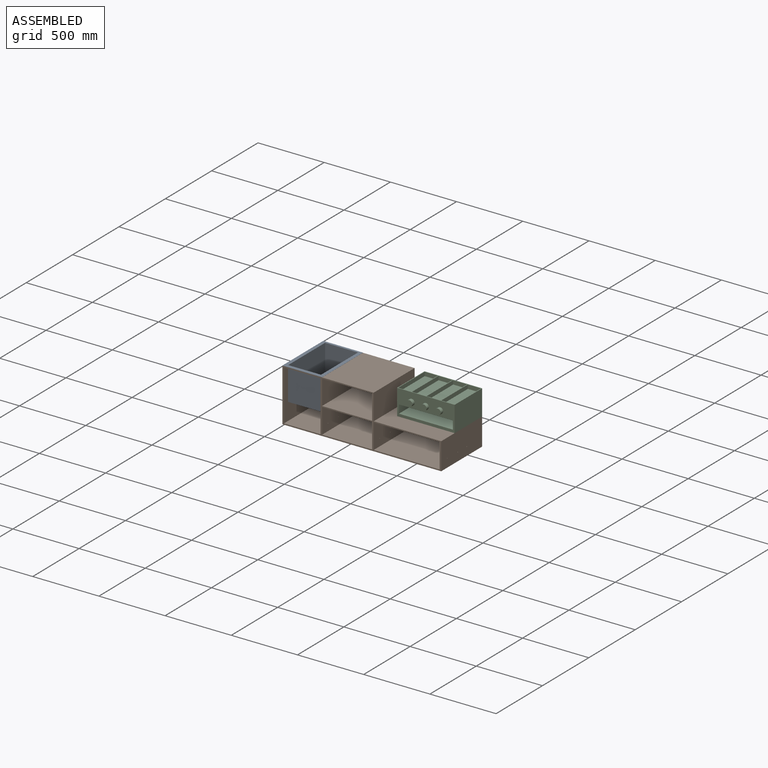
[diagram: assembled view]
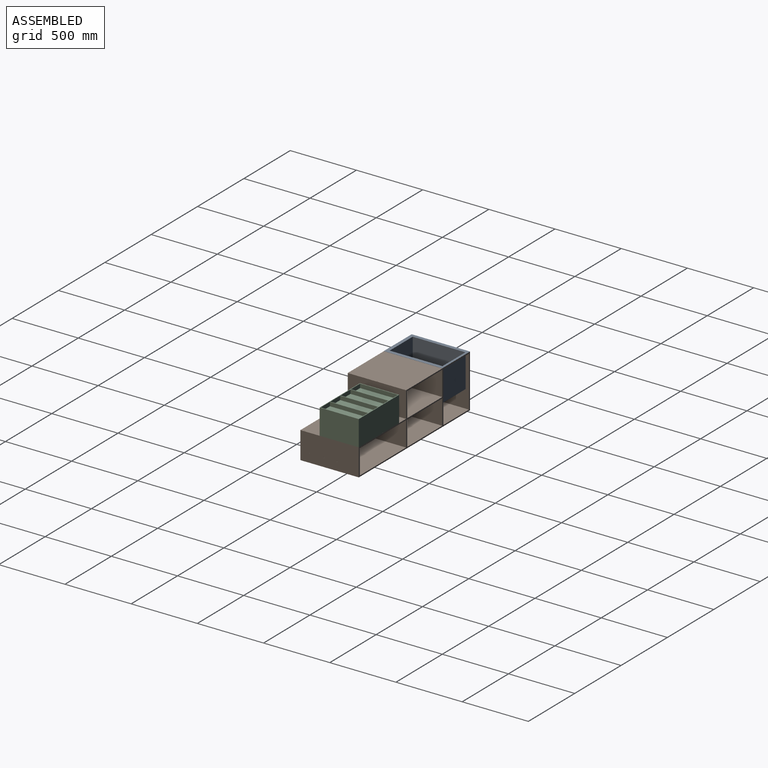
[diagram: assembled view, second angle]
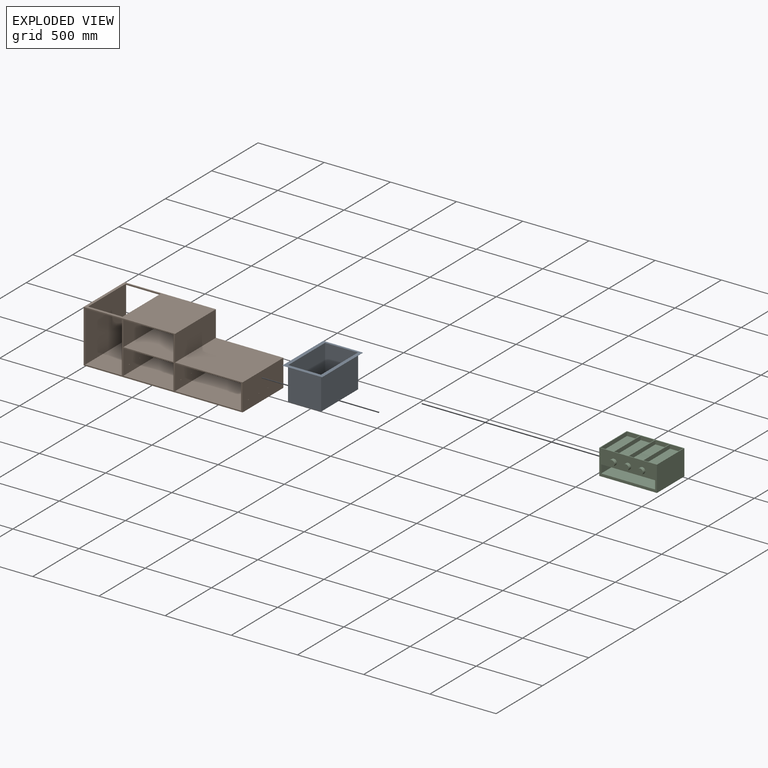
[diagram: exploded view]
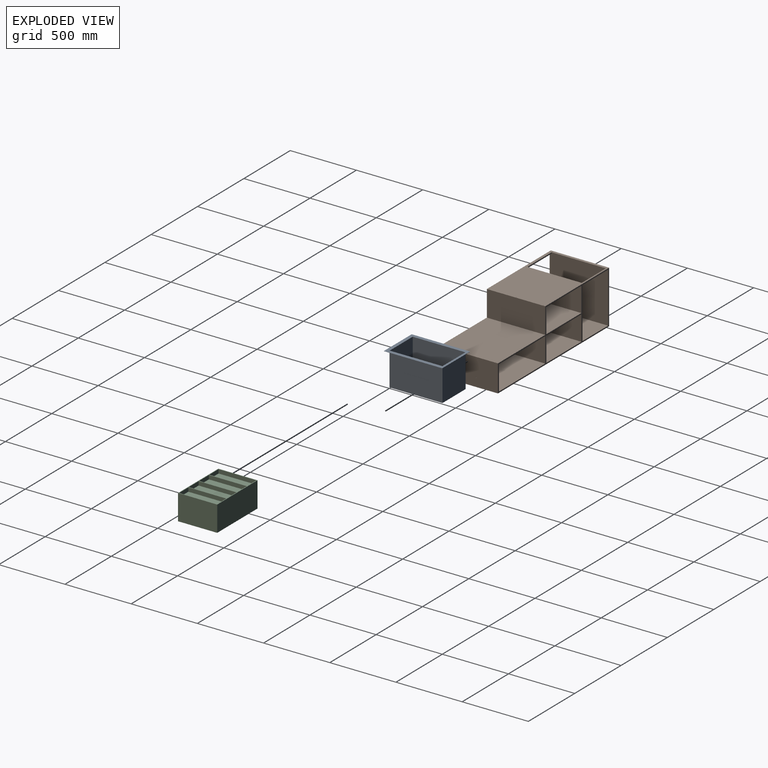
[diagram: exploded view, second angle]
ASSEMBLY  parts=3 mates=2
PART A: 16 faces, bbox 300x441x251 mm
  f0: plane 300x1mm, normal (0,-1,0), area 300mm2, adj f1,f3,f4,f5
  f1: plane 441x1mm, normal (1,0,0), area 441mm2, adj f0,f2,f4,f5
  f2: plane 300x1mm, normal (0,1,0), area 300mm2, adj f1,f3,f4,f5
  f3: plane 441x1mm, normal (-1,0,0), area 441mm2, adj f0,f2,f4,f5
  f4: plane 441x300mm, normal (0,0,1), area 33596mm2, adj f0,f1,f2,f3,f11,f12,f13,f14
  f5: plane 441x300mm, normal (0,0,-1), area 32300mm2, adj f0,f1,f2,f3,f6,f7,f8,f9
  f6: plane 250x250mm, normal (0,-1,0), area 62500mm2, adj f5,f7,f9,f10
  f7: plane 400x250mm, normal (1,0,0), area 100000mm2, adj f5,f6,f8,f10
  f8: plane 250x250mm, normal (0,1,0), area 62500mm2, adj f5,f7,f9,f10
  f9: plane 400x250mm, normal (-1,0,0), area 100000mm2, adj f5,f6,f8,f10
  f10: plane 400x250mm, normal (0,0,-1), area 100000mm2, adj f6,f7,f8,f9
  f11: plane 250x248mm, normal (0,1,0), area 62000mm2, adj f4,f12,f14,f15
  f12: plane 398x250mm, normal (-1,0,0), area 99500mm2, adj f4,f11,f13,f15
  f13: plane 250x248mm, normal (0,-1,0), area 62000mm2, adj f4,f12,f14,f15
  f14: plane 398x250mm, normal (1,0,0), area 99500mm2, adj f4,f11,f13,f15
  f15: plane 398x248mm, normal (0,0,1), area 98704mm2, adj f11,f12,f13,f14
PART B: 100 faces, bbox 1200x441x400 mm
  f0: plane 498x441mm, normal (0,0,1), area 219618mm2, adj f1,f8,f9,f23
  f1: plane 441x187mm, normal (1,0,0), area 82410.4mm2, adj f0,f8,f9,f17,f34,f35,f36,f40
  f2: plane 441x186mm, normal (-1,0,0), area 82026mm2, adj f5,f8,f9,f15
  f3: plane 441x187mm, normal (1,0,0), area 82410.4mm2, adj f8,f9,f16,f21,f31,f32,f33,f37
  f4: plane 441x276mm, normal (0,0,-1), area 15116mm2, adj f7,f8,f9,f13,f24,f25,f26,f27
  f5: plane 441x378mm, normal (0,0,-1), area 166698mm2, adj f2,f8,f9,f14
  f6: plane 441x400mm, normal (-1,0,0), area 176400mm2, adj f8,f9,f11,f22
  f7: plane 441x382mm, normal (1,0,0), area 168462mm2, adj f4,f8,f9,f20
  f8: plane 1200x400mm, normal (0,-1,0), area 40998mm2, adj f0,f1,f2,f3,f4,f5,f6,f7
  f9: plane 1200x400mm, normal (0,1,0), area 40998mm2, adj f0,f1,f2,f3,f4,f5,f6,f7
  f10: plane 441x195mm, normal (1,0,0), area 85995mm2, adj f8,f9,f11,f19
  f11: plane 690x441mm, normal (0,0,1), area 197661.7mm2, adj f6,f8,f9,f10,f24,f25,f26,f27
  f12: plane 441x187mm, normal (-1,0,0), area 82410.4mm2, adj f8,f9,f16,f21,f34,f35,f36,f40
  f13: plane 441x382mm, normal (-1,0,0), area 168405.4mm2, adj f4,f8,f9,f20,f31,f32,f33,f37
  f14: plane 441x186mm, normal (1,0,0), area 82026mm2, adj f5,f8,f9,f15
  f15: plane 441x378mm, normal (0,0,1), area 166698mm2, adj f2,f8,f9,f14
  f16: plane 441x378mm, normal (0,0,-1), area 166698mm2, adj f3,f8,f9,f12
  f17: plane 498x441mm, normal (0,0,-1), area 219618mm2, adj f1,f8,f9,f23
  f18: plane 441x205mm, normal (1,0,0), area 90350.7mm2, adj f8,f9,f19,f22,f28,f29,f30
  f19: plane 510x441mm, normal (0,0,1), area 224900.6mm2, adj f8,f9,f10,f18,f62,f64,f66
  f20: plane 441x276mm, normal (0,0,1), area 121716mm2, adj f7,f8,f9,f13
  f21: plane 441x378mm, normal (0,0,1), area 166698mm2, adj f3,f8,f9,f12
  f22: plane 1200x441mm, normal (0,0,-1), area 529162.3mm2, adj f6,f8,f9,f18,f68,f70,f72,f74
  f23: plane 441x187mm, normal (-1,0,0), area 82412.7mm2, adj f0,f8,f9,f17,f28,f29,f30
  f24: plane 410x9mm, normal (-1,0,0), area 3690mm2, adj f4,f11,f25,f26
  f25: plane 260x9mm, normal (0,1,0), area 2340mm2, adj f4,f11,f24,f27
  f26: plane 260x9mm, normal (0,-1,0), area 2340mm2, adj f4,f11,f24,f27
  f27: plane 410x9mm, normal (1,0,0), area 3690mm2, adj f4,f11,f25,f26
  f28: cylinder r=2.4mm len=12mm, axis (1,0,0), area 181mm2, adj f18,f23
  f29: cylinder r=2.4mm len=12mm, axis (1,0,0), area 181mm2, adj f18,f23
  f30: cylinder r=2.4mm len=12mm, axis (1,0,0), area 181mm2, adj f18,f23
  f31: cylinder r=2.4mm len=12mm, axis (1,0,0), area 181mm2, adj f3,f13
  f32: cylinder r=2.4mm len=12mm, axis (1,0,0), area 181mm2, adj f3,f13
  f33: cylinder r=2.4mm len=12mm, axis (1,0,0), area 181mm2, adj f3,f13
  f34: cylinder r=2.4mm len=12mm, axis (1,0,0), area 181mm2, adj f1,f12
  f35: cylinder r=2.4mm len=12mm, axis (1,0,0), area 181mm2, adj f1,f12
  f36: cylinder r=2.4mm len=12mm, axis (1,0,0), area 181mm2, adj f1,f12
  f37: cylinder r=0.5mm len=12mm, axis (1,0,0), area 37.7mm2, adj f3,f13
  f38: cylinder r=0.5mm len=12mm, axis (1,0,0), area 37.7mm2, adj f3,f13
  f39: cylinder r=0.5mm len=12mm, axis (1,0,0), area 37.7mm2, adj f3,f13
  f40: cylinder r=0.5mm len=12mm, axis (1,0,0), area 37.7mm2, adj f1,f12
  f41: cylinder r=0.5mm len=12mm, axis (1,0,0), area 37.7mm2, adj f1,f12
  f42: cylinder r=0.5mm len=12mm, axis (1,0,0), area 37.7mm2, adj f1,f12
  f43: plane 2x2mm, normal (0,0,1), area 3.1mm2, adj f44
  f44: cylinder r=1mm len=9mm, axis (0,0,1), area 56.5mm2, adj f11,f43
  f45: plane 2x2mm, normal (0,0,1), area 3.1mm2, adj f46
  f46: cylinder r=1mm len=9mm, axis (0,0,1), area 56.5mm2, adj f11,f45
  f47: plane 2x2mm, normal (0,0,1), area 3.1mm2, adj f48
  f48: cylinder r=1mm len=9mm, axis (0,0,1), area 56.5mm2, adj f11,f47
  f49: plane 2x2mm, normal (0,0,1), area 3.1mm2, adj f50
  f50: cylinder r=1mm len=9mm, axis (0,0,1), area 56.5mm2, adj f11,f49
  f51: plane 2x2mm, normal (0,0,1), area 3.1mm2, adj f52
  f52: cylinder r=1mm len=9mm, axis (0,0,1), area 56.5mm2, adj f11,f51
  f53: plane 2x2mm, normal (0,0,1), area 3.1mm2, adj f54
  f54: cylinder r=1mm len=9mm, axis (0,0,1), area 56.5mm2, adj f11,f53
  f55: plane 2x2mm, normal (0,0,1), area 3.1mm2, adj f56
  f56: cylinder r=1mm len=9mm, axis (0,0,1), area 56.5mm2, adj f11,f55
  f57: plane 2x2mm, normal (0,0,1), area 3.1mm2, adj f58
  f58: cylinder r=1mm len=9mm, axis (0,0,1), area 56.5mm2, adj f11,f57
  f59: plane 2x2mm, normal (0,0,1), area 3.1mm2, adj f60
  f60: cylinder r=1mm len=9mm, axis (0,0,1), area 56.5mm2, adj f11,f59
  f61: plane 2x2mm, normal (0,0,1), area 3.1mm2, adj f62
  f62: cylinder r=1mm len=9mm, axis (0,0,1), area 56.5mm2, adj f19,f61
  f63: plane 2x2mm, normal (0,0,1), area 3.1mm2, adj f64
  f64: cylinder r=1mm len=9mm, axis (0,0,1), area 56.5mm2, adj f19,f63
  f65: plane 2x2mm, normal (0,0,1), area 3.1mm2, adj f66
  f66: cylinder r=1mm len=9mm, axis (0,0,1), area 56.5mm2, adj f19,f65
  f67: plane 2x2mm, normal (0,0,-1), area 3.1mm2, adj f68
  f68: cylinder r=1mm len=9mm, axis (0,0,-1), area 56.5mm2, adj f22,f67
  f69: plane 2x2mm, normal (0,0,-1), area 3.1mm2, adj f70
  f70: cylinder r=1mm len=9mm, axis (0,0,-1), area 56.5mm2, adj f22,f69
  f71: plane 2x2mm, normal (0,0,-1), area 3.1mm2, adj f72
  f72: cylinder r=1mm len=9mm, axis (0,0,-1), area 56.5mm2, adj f22,f71
  f73: plane 2x2mm, normal (0,0,-1), area 3.1mm2, adj f74
  f74: cylinder r=1mm len=9mm, axis (0,0,-1), area 56.5mm2, adj f22,f73
  f75: plane 2x2mm, normal (0,0,-1), area 3.1mm2, adj f76
  f76: cylinder r=1mm len=9mm, axis (0,0,-1), area 56.5mm2, adj f22,f75
  f77: plane 2x2mm, normal (0,0,-1), area 3.1mm2, adj f78
  f78: cylinder r=1mm len=9mm, axis (0,0,-1), area 56.5mm2, adj f22,f77
  f79: plane 2x2mm, normal (0,0,-1), area 3.1mm2, adj f80
  f80: cylinder r=1mm len=9mm, axis (0,0,-1), area 56.5mm2, adj f22,f79
  f81: plane 2x2mm, normal (0,0,-1), area 3.1mm2, adj f82
  f82: cylinder r=1mm len=9mm, axis (0,0,-1), area 56.5mm2, adj f22,f81
  f83: plane 2x2mm, normal (0,0,-1), area 3.1mm2, adj f84
  f84: cylinder r=1mm len=9mm, axis (0,0,-1), area 56.5mm2, adj f22,f83
  f85: plane 2x2mm, normal (0,0,-1), area 3.1mm2, adj f86
  f86: cylinder r=1mm len=9mm, axis (0,0,-1), area 56.5mm2, adj f22,f85
  f87: plane 2x2mm, normal (0,0,-1), area 3.1mm2, adj f88
  f88: cylinder r=1mm len=9mm, axis (0,0,-1), area 56.5mm2, adj f22,f87
  f89: plane 2x2mm, normal (0,0,-1), area 3.1mm2, adj f90
  f90: cylinder r=1mm len=9mm, axis (0,0,-1), area 56.5mm2, adj f22,f89
  f91: plane 2x2mm, normal (-1,0,0), area 3.1mm2, adj f92
  f92: cylinder r=1mm len=12mm, axis (-1,0,0), area 75.4mm2, adj f91,f93
  f93: plane 2x2mm, normal (1,0,0), area 3.1mm2, adj f92
  f94: plane 2x2mm, normal (-1,0,0), area 3.1mm2, adj f95
  f95: cylinder r=1mm len=12mm, axis (-1,0,0), area 75.4mm2, adj f94,f96
  f96: plane 2x2mm, normal (1,0,0), area 3.1mm2, adj f95
  f97: plane 2x2mm, normal (-1,0,0), area 3.1mm2, adj f98
  f98: cylinder r=1mm len=12mm, axis (-1,0,0), area 75.4mm2, adj f97,f99
  f99: plane 2x2mm, normal (1,0,0), area 3.1mm2, adj f98
PART C: 39 faces, bbox 452x321x193 mm
  f0: plane 435x193mm, normal (0,-1,0), area 53479.7mm2, adj f1,f2,f3,f5,f6,f7,f8,f10
  f1: plane 296x193mm, normal (1,0,0), area 57128mm2, adj f0,f3,f4,f32
  f2: plane 296x193mm, normal (-1,0,0), area 56984.9mm2, adj f0,f3,f4,f32,f37
  f3: plane 435x296mm, normal (0,0,-1), area 128760mm2, adj f0,f1,f2,f4
  f4: plane 435x193mm, normal (0,1,0), area 83955mm2, adj f1,f2,f3,f32
  f5: plane 295x63mm, normal (-1,0,0), area 18585mm2, adj f0,f6,f8,f9
  f6: plane 408x295mm, normal (0,0,-1), area 120360mm2, adj f0,f5,f7,f9
  f7: plane 295x63mm, normal (1,0,0), area 18585mm2, adj f0,f6,f8,f9
  f8: plane 408x295mm, normal (0,0,1), area 120360mm2, adj f0,f5,f7,f9
  f9: plane 408x63mm, normal (0,-1,0), area 25704mm2, adj f5,f6,f7,f8
  f10: cylinder r=22.5mm len=45mm, axis (0,1,0), area 3534.3mm2, adj f0,f11
  f11: plane 45x45mm, normal (0,-1,0), area 1590.4mm2, adj f10
  f12: cylinder r=22.5mm len=45mm, axis (0,1,0), area 3534.3mm2, adj f0,f13
  f13: plane 45x45mm, normal (0,-1,0), area 1590.4mm2, adj f12
  f14: cylinder r=22.5mm len=45mm, axis (0,1,0), area 3534.3mm2, adj f0,f15
  f15: plane 45x45mm, normal (0,-1,0), area 1590.4mm2, adj f14
  f16: plane 286x30mm, normal (1,0,0), area 8580mm2, adj f17,f28,f32,f36
  f17: plane 99.5x30mm, normal (0,-1,0), area 2985mm2, adj f16,f18,f32,f36
  f18: plane 286x30mm, normal (-1,0,0), area 8580mm2, adj f17,f28,f32,f36
  f19: plane 105.5x30mm, normal (0,-1,0), area 3165mm2, adj f20,f29,f32,f33
  f20: plane 286x30mm, normal (-1,0,0), area 8580mm2, adj f19,f21,f32,f33
  f21: plane 105.5x30mm, normal (0,1,0), area 3165mm2, adj f20,f29,f32,f33
  f22: plane 105.5x30mm, normal (0,-1,0), area 3165mm2, adj f23,f30,f32,f34
  f23: plane 286x30mm, normal (-1,0,0), area 8580mm2, adj f22,f24,f32,f34
  f24: plane 105.5x30mm, normal (0,1,0), area 3165mm2, adj f23,f30,f32,f34
  f25: plane 99.5x30mm, normal (0,-1,0), area 2985mm2, adj f26,f31,f32,f35
  f26: plane 286x30mm, normal (-1,0,0), area 8580mm2, adj f25,f27,f32,f35
  f27: plane 99.5x30mm, normal (0,1,0), area 2985mm2, adj f26,f31,f32,f35
  f28: plane 99.5x30mm, normal (0,1,0), area 2985mm2, adj f16,f18,f32,f36
  f29: plane 286x30mm, normal (1,0,0), area 8580mm2, adj f19,f21,f32,f33
  f30: plane 286x30mm, normal (1,0,0), area 8580mm2, adj f22,f24,f32,f34
  f31: plane 286x30mm, normal (1,0,0), area 8580mm2, adj f25,f27,f32,f35
  f32: plane 435x296mm, normal (0,0,1), area 11500mm2, adj f0,f1,f2,f4,f16,f17,f18,f19
  f33: plane 286x105.5mm, normal (0,0,1), area 30173mm2, adj f19,f20,f21,f29
  f34: plane 286x105.5mm, normal (0,0,1), area 30173mm2, adj f22,f23,f24,f30
  f35: plane 286x99.5mm, normal (0,0,1), area 28457mm2, adj f25,f26,f27,f31
  f36: plane 286x99.5mm, normal (0,0,1), area 28457mm2, adj f16,f17,f18,f28
  f37: cylinder r=6.75mm len=17mm, axis (1,0,0), area 721mm2, adj f2,f38
  f38: plane 13.5x13.5mm, normal (-1,0,0), area 143.1mm2, adj f37
PLACE A t=(81.22,117.35,-57.69)mm
PLACE B t=(81.22,117.35,-57.69)mm
PLACE C t=(494.09,-178.65,29.94)mm
MATE planar A.f5 <-> B.f11  axis (0,0,1) through (-488.41,-323.65,143.44)mm
MATE fastened C.f1 <-> B.f18  axis (1,0,0) through (711.59,117.35,-51.56)mm
